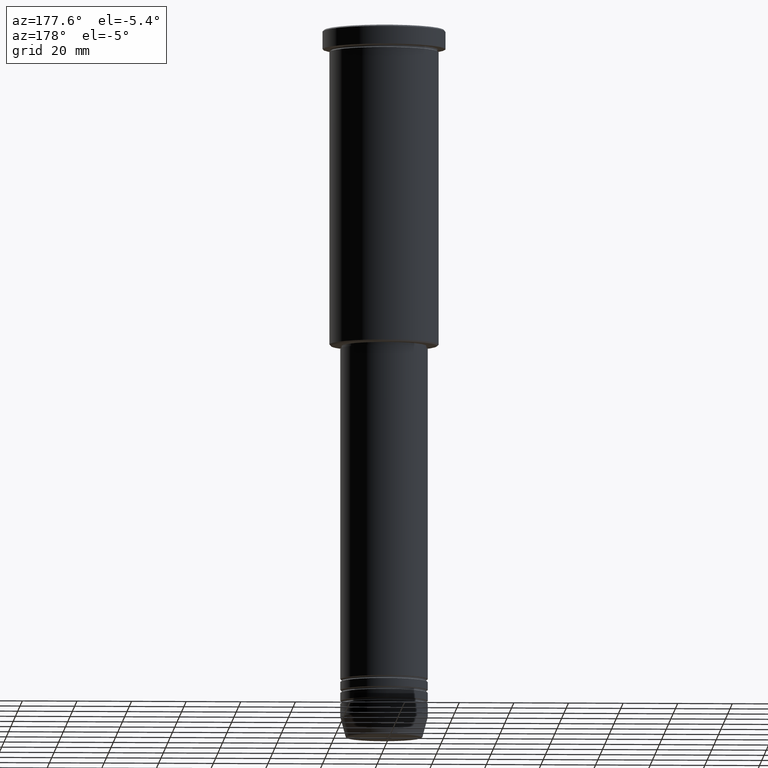
[diagram: clean part render]
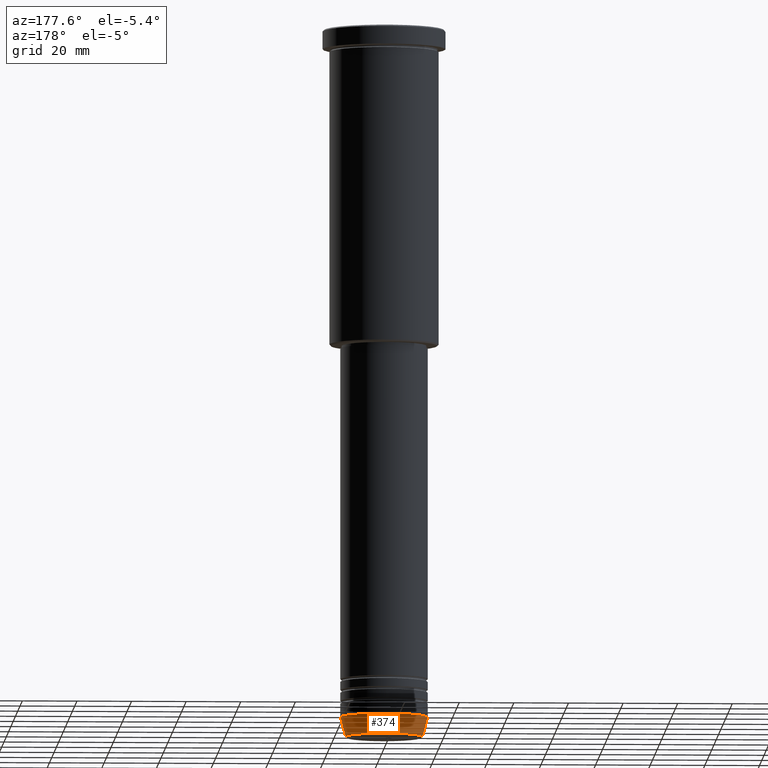
[diagram: same view with one face highlighted and labeled with its STEP entity id]
A machine part, auxiliary view. The second image highlights one B-rep face of the part: STEP entity #374.
In plain terms, the highlighted conical surface has half-angle 15 deg.
Its self-contained STEP definition (entity closure, byte-faithful):
#5 = CIRCLE ( 'NONE', #309, 14.08968047592161632 ) ;
#19 = EDGE_CURVE ( 'NONE', #630, #238, #570, .T. ) ;
#26 = AXIS2_PLACEMENT_3D ( 'NONE', #1160, #506, #978 ) ;
#34 = ORIENTED_EDGE ( 'NONE', *, *, #179, .T. ) ;
#62 = VECTOR ( 'NONE', #398, 1000.000000000000000 ) ;
#117 = VERTEX_POINT ( 'NONE', #319 ) ;
#138 = CARTESIAN_POINT ( 'NONE',  ( 16.00000000000000000, 0.000000000000000000, -252.5000000000000000 ) ) ;
#148 = CARTESIAN_POINT ( 'NONE',  ( 0.000000000000000000, 0.000000000000000000, -259.6294095225512706 ) ) ;
#179 = EDGE_CURVE ( 'NONE', #117, #630, #5, .T. ) ;
#185 = CARTESIAN_POINT ( 'NONE',  ( -14.08968047592161632, 1.842461544110200874E-15, -259.6294095225512706 ) ) ;
#238 = VERTEX_POINT ( 'NONE', #448 ) ;
#252 = FACE_OUTER_BOUND ( 'NONE', #830, .T. ) ;
#277 = ORIENTED_EDGE ( 'NONE', *, *, #454, .F. ) ;
#279 = EDGE_CURVE ( 'NONE', #117, #1127, #944, .T. ) ;
#295 = DIRECTION ( 'NONE',  ( -0.2588190451025213501, 3.169619151431772337E-17, 0.9659258262890680902 ) ) ;
#309 = AXIS2_PLACEMENT_3D ( 'NONE', #148, #503, #1062 ) ;
#319 = CARTESIAN_POINT ( 'NONE',  ( 14.08968047592161632, 0.000000000000000000, -259.6294095225512706 ) ) ;
#337 = CARTESIAN_POINT ( 'NONE',  ( 0.000000000000000000, 0.000000000000000000, -252.5000000000000000 ) ) ;
#374 = ADVANCED_FACE ( 'NONE', ( #252 ), #1010, .T. ) ;
#398 = DIRECTION ( 'NONE',  ( 0.2588190451025213501, 0.000000000000000000, 0.9659258262890680902 ) ) ;
#436 = DIRECTION ( 'NONE',  ( 1.000000000000000000, 0.000000000000000000, 0.000000000000000000 ) ) ;
#448 = CARTESIAN_POINT ( 'NONE',  ( -16.00000000000000000, 1.959434878635765131E-15, -252.5000000000000000 ) ) ;
#454 = EDGE_CURVE ( 'NONE', #1127, #238, #511, .T. ) ;
#466 = ORIENTED_EDGE ( 'NONE', *, *, #279, .F. ) ;
#482 = CARTESIAN_POINT ( 'NONE',  ( -16.00000000000000000, 1.959434878635765131E-15, -252.5000000000000000 ) ) ;
#503 = DIRECTION ( 'NONE',  ( -0.000000000000000000, -0.000000000000000000, 1.000000000000000000 ) ) ;
#506 = DIRECTION ( 'NONE',  ( -0.000000000000000000, -0.000000000000000000, 1.000000000000000000 ) ) ;
#511 = CIRCLE ( 'NONE', #926, 16.00000000000000000 ) ;
#516 = DIRECTION ( 'NONE',  ( -0.000000000000000000, -0.000000000000000000, 1.000000000000000000 ) ) ;
#570 = LINE ( 'NONE', #482, #1108 ) ;
#614 = ORIENTED_EDGE ( 'NONE', *, *, #19, .T. ) ;
#616 = CARTESIAN_POINT ( 'NONE',  ( 16.00000000000000000, 0.000000000000000000, -252.5000000000000000 ) ) ;
#630 = VERTEX_POINT ( 'NONE', #185 ) ;
#830 = EDGE_LOOP ( 'NONE', ( #34, #614, #277, #466 ) ) ;
#926 = AXIS2_PLACEMENT_3D ( 'NONE', #337, #516, #436 ) ;
#944 = LINE ( 'NONE', #138, #62 ) ;
#978 = DIRECTION ( 'NONE',  ( 1.000000000000000000, 0.000000000000000000, 0.000000000000000000 ) ) ;
#1010 = CONICAL_SURFACE ( 'NONE', #26, 16.00000000000000000, 0.2617993877991500740 ) ;
#1062 = DIRECTION ( 'NONE',  ( 1.000000000000000000, 0.000000000000000000, 0.000000000000000000 ) ) ;
#1108 = VECTOR ( 'NONE', #295, 1000.000000000000000 ) ;
#1127 = VERTEX_POINT ( 'NONE', #616 ) ;
#1160 = CARTESIAN_POINT ( 'NONE',  ( 0.000000000000000000, 0.000000000000000000, -252.5000000000000000 ) ) ;